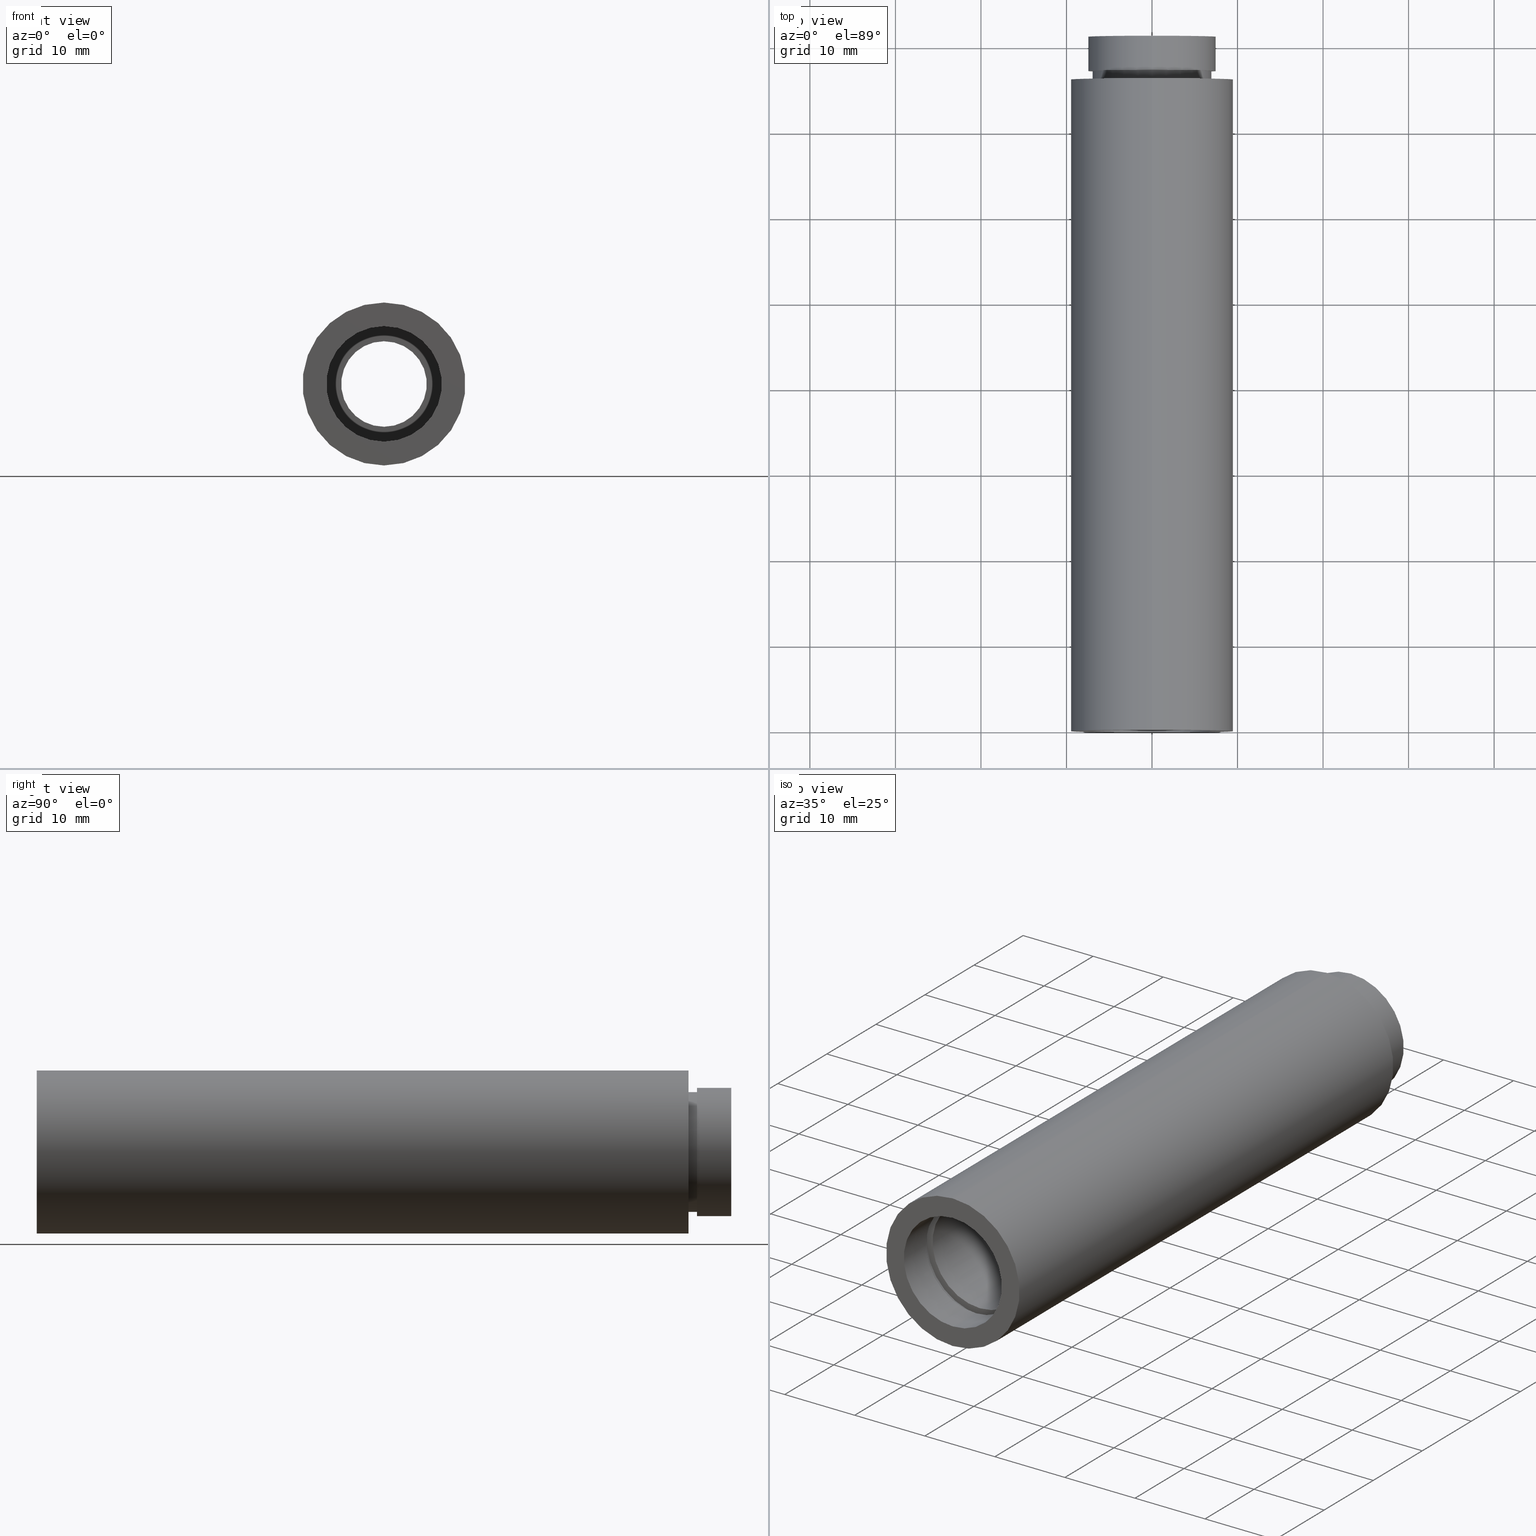
[diagram: canonical four-view strip — front | top / right | iso, engineering-drawing reading convention]
A machine part, canonical four-view strip (front | top / right | iso — engineering-drawing reading convention). The complete STEP part file that produces these views, byte-faithful:
ISO-10303-21;
HEADER;
FILE_DESCRIPTION (( 'STEP AP214' ),
    '1' );
FILE_NAME ('503077.STEP',
    '2019-09-10T06:35:35',
    ( '' ),
    ( '' ),
    'SwSTEP 2.0',
    'SolidWorks 2016',
    '' );
FILE_SCHEMA (( 'AUTOMOTIVE_DESIGN' ));
ENDSEC;

DATA;
#1 = FACE_BOUND ( 'NONE', #428, .T. ) ;
#2 = EDGE_CURVE ( 'NONE', #271, #26, #489, .T. ) ;
#3 = DIRECTION ( 'NONE',  ( -0.0000000000000000000, 1.000000000000000000, -0.0000000000000000000 ) ) ;
#4 = DIRECTION ( 'NONE',  ( -0.0000000000000000000, 1.000000000000000000, -0.0000000000000000000 ) ) ;
#5 = ORIENTED_EDGE ( 'NONE', *, *, #61, .F. ) ;
#6 = AXIS2_PLACEMENT_3D ( 'NONE', #574, #70, #329 ) ;
#7 =( LENGTH_UNIT ( ) NAMED_UNIT ( * ) SI_UNIT ( .MILLI., .METRE. ) );
#8 = DIRECTION ( 'NONE',  ( -0.0000000000000000000, 1.000000000000000000, -0.0000000000000000000 ) ) ;
#9 = EDGE_LOOP ( 'NONE', ( #167, #25, #665, #637 ) ) ;
#10 = ORIENTED_EDGE ( 'NONE', *, *, #2, .F. ) ;
#11 = AXIS2_PLACEMENT_3D ( 'NONE', #604, #501, #188 ) ;
#12 = ORIENTED_EDGE ( 'NONE', *, *, #636, .T. ) ;
#13 =( NAMED_UNIT ( * ) PLANE_ANGLE_UNIT ( ) SI_UNIT ( $, .RADIAN. ) );
#14 = ORIENTED_EDGE ( 'NONE', *, *, #750, .T. ) ;
#15 = EDGE_CURVE ( 'NONE', #702, #97, #758, .T. ) ;
#16 = ORIENTED_EDGE ( 'NONE', *, *, #120, .F. ) ;
#17 =( NAMED_UNIT ( * ) PLANE_ANGLE_UNIT ( ) SI_UNIT ( $, .RADIAN. ) );
#18 = AXIS2_PLACEMENT_3D ( 'NONE', #445, #320, #569 ) ;
#19 =( LENGTH_UNIT ( ) NAMED_UNIT ( * ) SI_UNIT ( .MILLI., .METRE. ) );
#20 = VERTEX_POINT ( 'NONE', #91 ) ;
#21 = CARTESIAN_POINT ( 'NONE',  ( 0.0000000000000000000, 76.20000000000000300, 7.000000000000009800 ) ) ;
#22 = AXIS2_PLACEMENT_3D ( 'NONE', #119, #244, #268 ) ;
#23 = DIRECTION ( 'NONE',  ( -0.0000000000000000000, 1.000000000000000000, -0.0000000000000000000 ) ) ;
#24 = CARTESIAN_POINT ( 'NONE',  ( 9.307315673519907200E-016, 161.3761669434274500, -7.600000000000019200 ) ) ;
#25 = ORIENTED_EDGE ( 'NONE', *, *, #515, .T. ) ;
#26 = VERTEX_POINT ( 'NONE', #21 ) ;
#27 = DIRECTION ( 'NONE',  ( -0.0000000000000000000, 1.000000000000000000, -0.0000000000000000000 ) ) ;
#28 = PLANE ( 'NONE',  #114 ) ;
#29 = EDGE_CURVE ( 'NONE', #760, #459, #589, .T. ) ;
#30 = VECTOR ( 'NONE', #48, 1000.000000000000000 ) ;
#31 = VECTOR ( 'NONE', #300, 1000.000000000000000 ) ;
#32 = DIRECTION ( 'NONE',  ( -0.0000000000000000000, 1.000000000000000000, -0.0000000000000000000 ) ) ;
#33 = ORIENTED_EDGE ( 'NONE', *, *, #168, .T. ) ;
#34 = FACE_OUTER_BOUND ( 'NONE', #564, .T. ) ;
#35 = EDGE_CURVE ( 'NONE', #297, #364, #579, .T. ) ;
#36 = CARTESIAN_POINT ( 'NONE',  ( 0.0000000000000000000, 77.20000000000000300, 7.500000000000009800 ) ) ;
#37 =( NAMED_UNIT ( * ) SI_UNIT ( $, .STERADIAN. ) SOLID_ANGLE_UNIT ( ) );
#38 = DIRECTION ( 'NONE',  ( -0.0000000000000000000, 1.000000000000000000, -0.0000000000000000000 ) ) ;
#39 = APPLICATION_CONTEXT ( 'automotive_design' ) ;
#40 = SURFACE_STYLE_USAGE ( .BOTH. , #43 ) ;
#41 = PRESENTATION_LAYER_ASSIGNMENT (  '', '', ( #278 ) ) ;
#42 =( NAMED_UNIT ( * ) SI_UNIT ( $, .STERADIAN. ) SOLID_ANGLE_UNIT ( ) );
#43 = SURFACE_SIDE_STYLE ('',( #374 ) ) ;
#44 = ORIENTED_EDGE ( 'NONE', *, *, #761, .F. ) ;
#45 = DIRECTION ( 'NONE',  ( -0.0000000000000000000, 1.000000000000000000, -0.0000000000000000000 ) ) ;
#46 = DIRECTION ( 'NONE',  ( -0.0000000000000000000, 1.000000000000000000, -0.0000000000000000000 ) ) ;
#47 = CARTESIAN_POINT ( 'NONE',  ( 8.572527594031496900E-016, -2.775557561562891400E-014, -7.000000000000020400 ) ) ;
#48 = DIRECTION ( 'NONE',  ( -0.0000000000000000000, 1.000000000000000000, -0.0000000000000000000 ) ) ;
#49 = FILL_AREA_STYLE ('',( #615 ) ) ;
#50 = LINE ( 'NONE', #688, #31 ) ;
#51 = AXIS2_PLACEMENT_3D ( 'NONE', #540, #102, #105 ) ;
#52 = ORIENTED_EDGE ( 'NONE', *, *, #303, .T. ) ;
#53 = ORIENTED_EDGE ( 'NONE', *, *, #210, .F. ) ;
#54 = FILL_AREA_STYLE_COLOUR ( '', #798 ) ;
#55 = ADVANCED_FACE ( 'NONE', ( #614 ), #386, .T. ) ;
#56 =( GEOMETRIC_REPRESENTATION_CONTEXT ( 3 ) GLOBAL_UNCERTAINTY_ASSIGNED_CONTEXT ( ( #108 ) ) GLOBAL_UNIT_ASSIGNED_CONTEXT ( ( #481, #724, #98 ) ) REPRESENTATION_CONTEXT ( 'NONE', 'WORKASPACE' ) );
#57 = DIRECTION ( 'NONE',  ( -0.0000000000000000000, 1.000000000000000000, -0.0000000000000000000 ) ) ;
#58 = DIRECTION ( 'NONE',  ( 0.0000000000000000000, 0.0000000000000000000, 1.000000000000000000 ) ) ;
#59 = FILL_AREA_STYLE ('',( #252 ) ) ;
#60 = VECTOR ( 'NONE', #135, 1000.000000000000000 ) ;
#61 = EDGE_CURVE ( 'NONE', #586, #258, #555, .T. ) ;
#62 = AXIS2_PLACEMENT_3D ( 'NONE', #516, #139, #643 ) ;
#63 = FILL_AREA_STYLE_COLOUR ( '', #814 ) ;
#64 = VERTEX_POINT ( 'NONE', #711 ) ;
#65 = ORIENTED_EDGE ( 'NONE', *, *, #541, .T. ) ;
#66 = CIRCLE ( 'NONE', #580, 6.750000000000018700 ) ;
#67 = AXIS2_PLACEMENT_3D ( 'NONE', #95, #388, #274 ) ;
#68 = ORIENTED_EDGE ( 'NONE', *, *, #288, .T. ) ;
#69 = SURFACE_STYLE_FILL_AREA ( #706 ) ;
#70 = DIRECTION ( 'NONE',  ( -0.0000000000000000000, 1.000000000000000000, -0.0000000000000000000 ) ) ;
#71 = ORIENTED_EDGE ( 'NONE', *, *, #733, .T. ) ;
#72 = EDGE_CURVE ( 'NONE', #284, #258, #626, .T. ) ;
#73 = EDGE_LOOP ( 'NONE', ( #312, #521, #183, #394 ) ) ;
#74 = CARTESIAN_POINT ( 'NONE',  ( 0.0000000000000000000, 161.3761669434274500, 0.0000000000000000000 ) ) ;
#75 = VERTEX_POINT ( 'NONE', #654 ) ;
#76 = ORIENTED_EDGE ( 'NONE', *, *, #29, .T. ) ;
#77 = MECHANICAL_DESIGN_GEOMETRIC_PRESENTATION_REPRESENTATION (  '', ( #250 ), #529 ) ;
#78 = FILL_AREA_STYLE ('',( #63 ) ) ;
#79 = CYLINDRICAL_SURFACE ( 'NONE', #216, 6.850000000000009400 ) ;
#80 = EDGE_LOOP ( 'NONE', ( #687, #156, #440, #518 ) ) ;
#81 = AXIS2_PLACEMENT_3D ( 'NONE', #756, #57, #635 ) ;
#82 = VECTOR ( 'NONE', #668, 1000.000000000000000 ) ;
#83 = ORIENTED_EDGE ( 'NONE', *, *, #127, .F. ) ;
#84 = FILL_AREA_STYLE_COLOUR ( '', #90 ) ;
#85 = ORIENTED_EDGE ( 'NONE', *, *, #761, .T. ) ;
#86 = EDGE_LOOP ( 'NONE', ( #376, #420 ) ) ;
#87 = FACE_OUTER_BOUND ( 'NONE', #590, .T. ) ;
#88 = EDGE_CURVE ( 'NONE', #437, #491, #727, .T. ) ;
#89 = DIRECTION ( 'NONE',  ( 0.0000000000000000000, 0.0000000000000000000, 1.000000000000000000 ) ) ;
#90 = COLOUR_RGB ( '',1.000000000000000000, 1.000000000000000000, 1.000000000000000000 ) ;
#91 = CARTESIAN_POINT ( 'NONE',  ( 0.0000000000000000000, 73.19999999999998900, 6.750000000000018700 ) ) ;
#92 = ORIENTED_EDGE ( 'NONE', *, *, #515, .F. ) ;
#93 = CARTESIAN_POINT ( 'NONE',  ( 0.0000000000000000000, 161.3761669434274500, 6.750000000000018700 ) ) ;
#94 = DIRECTION ( 'NONE',  ( 0.0000000000000000000, 0.0000000000000000000, 1.000000000000000000 ) ) ;
#95 = CARTESIAN_POINT ( 'NONE',  ( 0.0000000000000000000, 5.499999999999976900, 0.0000000000000000000 ) ) ;
#96 = ADVANCED_FACE ( 'NONE', ( #291, #137 ), #340, .F. ) ;
#97 = VERTEX_POINT ( 'NONE', #218 ) ;
#98 =( NAMED_UNIT ( * ) SI_UNIT ( $, .STERADIAN. ) SOLID_ANGLE_UNIT ( ) );
#99 = ORIENTED_EDGE ( 'NONE', *, *, #553, .F. ) ;
#100 = AXIS2_PLACEMENT_3D ( 'NONE', #344, #341, #225 ) ;
#101 = DIRECTION ( 'NONE',  ( 0.0000000000000000000, 0.0000000000000000000, 1.000000000000000000 ) ) ;
#102 = DIRECTION ( 'NONE',  ( -0.0000000000000000000, 1.000000000000000000, -0.0000000000000000000 ) ) ;
#103 = FACE_OUTER_BOUND ( 'NONE', #73, .T. ) ;
#104 = VECTOR ( 'NONE', #368, 1000.000000000000000 ) ;
#105 = DIRECTION ( 'NONE',  ( 0.0000000000000000000, 0.0000000000000000000, 1.000000000000000000 ) ) ;
#106 = EDGE_CURVE ( 'NONE', #441, #284, #153, .T. ) ;
#107 = CARTESIAN_POINT ( 'NONE',  ( 0.0000000000000000000, -2.775557561562891400E-014, 0.0000000000000000000 ) ) ;
#108 = UNCERTAINTY_MEASURE_WITH_UNIT (LENGTH_MEASURE( 1.000000000000000100E-005 ), #481, 'distance_accuracy_value', 'NONE');
#109 = AXIS2_PLACEMENT_3D ( 'NONE', #336, #23, #89 ) ;
#110 = VERTEX_POINT ( 'NONE', #778 ) ;
#111 = CARTESIAN_POINT ( 'NONE',  ( 0.0000000000000000000, 161.3761669434274500, 0.0000000000000000000 ) ) ;
#112 = ORIENTED_EDGE ( 'NONE', *, *, #577, .F. ) ;
#113 =( NAMED_UNIT ( * ) SI_UNIT ( $, .STERADIAN. ) SOLID_ANGLE_UNIT ( ) );
#114 = AXIS2_PLACEMENT_3D ( 'NONE', #467, #722, #282 ) ;
#115 = CIRCLE ( 'NONE', #618, 7.600000000000019200 ) ;
#116 = FACE_BOUND ( 'NONE', #653, .T. ) ;
#117 = ORIENTED_EDGE ( 'NONE', *, *, #389, .F. ) ;
#118 = CARTESIAN_POINT ( 'NONE',  ( 0.0000000000000000000, -2.775557561562891400E-014, 0.0000000000000000000 ) ) ;
#119 = CARTESIAN_POINT ( 'NONE',  ( 0.0000000000000000000, 161.3761669434274500, 0.0000000000000000000 ) ) ;
#120 = EDGE_CURVE ( 'NONE', #75, #64, #265, .T. ) ;
#121 = DIRECTION ( 'NONE',  ( -0.0000000000000000000, 1.000000000000000000, -0.0000000000000000000 ) ) ;
#122 = ADVANCED_FACE ( 'NONE', ( #230 ), #475, .F. ) ;
#123 = ORIENTED_EDGE ( 'NONE', *, *, #439, .F. ) ;
#124 = CYLINDRICAL_SURFACE ( 'NONE', #409, 7.500000000000009800 ) ;
#125 =( NAMED_UNIT ( * ) SI_UNIT ( $, .STERADIAN. ) SOLID_ANGLE_UNIT ( ) );
#126 = APPLICATION_CONTEXT ( 'automotive_design' ) ;
#127 = EDGE_CURVE ( 'NONE', #194, #192, #449, .T. ) ;
#128 =( LENGTH_UNIT ( ) NAMED_UNIT ( * ) SI_UNIT ( .MILLI., .METRE. ) );
#129 = MECHANICAL_DESIGN_GEOMETRIC_PRESENTATION_REPRESENTATION (  '', ( #292 ), #568 ) ;
#130 = DIRECTION ( 'NONE',  ( -0.0000000000000000000, 1.000000000000000000, -0.0000000000000000000 ) ) ;
#131 = AXIS2_PLACEMENT_3D ( 'NONE', #118, #554, #180 ) ;
#132 = DIRECTION ( 'NONE',  ( -0.0000000000000000000, 1.000000000000000000, -0.0000000000000000000 ) ) ;
#133 = FACE_OUTER_BOUND ( 'NONE', #86, .T. ) ;
#134 = ORIENTED_EDGE ( 'NONE', *, *, #717, .F. ) ;
#135 = DIRECTION ( 'NONE',  ( -0.0000000000000000000, 1.000000000000000000, -0.0000000000000000000 ) ) ;
#136 = EDGE_CURVE ( 'NONE', #284, #441, #533, .T. ) ;
#137 = FACE_BOUND ( 'NONE', #573, .T. ) ;
#138 = CARTESIAN_POINT ( 'NONE',  ( 0.0000000000000000000, 161.3761669434274500, 0.0000000000000000000 ) ) ;
#139 = DIRECTION ( 'NONE',  ( -0.0000000000000000000, 1.000000000000000000, -0.0000000000000000000 ) ) ;
#140 = ORIENTED_EDGE ( 'NONE', *, *, #72, .F. ) ;
#141 = SURFACE_STYLE_FILL_AREA ( #49 ) ;
#142 = VECTOR ( 'NONE', #27, 1000.000000000000000 ) ;
#143 = AXIS2_PLACEMENT_3D ( 'NONE', #158, #656, #466 ) ;
#144 = ORIENTED_EDGE ( 'NONE', *, *, #695, .T. ) ;
#145 = DIRECTION ( 'NONE',  ( -0.0000000000000000000, 1.000000000000000000, -0.0000000000000000000 ) ) ;
#146 = EDGE_CURVE ( 'NONE', #491, #754, #686, .T. ) ;
#147 = ORIENTED_EDGE ( 'NONE', *, *, #789, .F. ) ;
#148 = STYLED_ITEM ( 'NONE', ( #150 ), #199 ) ;
#149 = CARTESIAN_POINT ( 'NONE',  ( 0.0000000000000000000, 81.19999999999998900, 0.0000000000000000000 ) ) ;
#150 = PRESENTATION_STYLE_ASSIGNMENT (( #729 ) ) ;
#151 = FACE_OUTER_BOUND ( 'NONE', #732, .T. ) ;
#152 = LINE ( 'NONE', #542, #567 ) ;
#153 = CIRCLE ( 'NONE', #143, 7.600000000000019200 ) ;
#154 = VERTEX_POINT ( 'NONE', #343 ) ;
#155 = DIRECTION ( 'NONE',  ( -0.0000000000000000000, 1.000000000000000000, -0.0000000000000000000 ) ) ;
#156 = ORIENTED_EDGE ( 'NONE', *, *, #195, .T. ) ;
#157 = DIRECTION ( 'NONE',  ( 0.0000000000000000000, -1.000000000000000000, 0.0000000000000000000 ) ) ;
#158 = CARTESIAN_POINT ( 'NONE',  ( 0.0000000000000000000, 4.499999999999976000, 0.0000000000000000000 ) ) ;
#159 = ADVANCED_FACE ( 'NONE', ( #408 ), #307, .F. ) ;
#160 = EDGE_LOOP ( 'NONE', ( #478, #703 ) ) ;
#161 = DIRECTION ( 'NONE',  ( 0.0000000000000000000, -1.000000000000000000, 0.0000000000000000000 ) ) ;
#162 = PRODUCT ( '503077', '503077', '', ( #806 ) ) ;
#163 = EDGE_CURVE ( 'NONE', #194, #421, #360, .T. ) ;
#164 = SURFACE_STYLE_FILL_AREA ( #295 ) ;
#165 = COLOUR_RGB ( '',1.000000000000000000, 1.000000000000000000, 1.000000000000000000 ) ;
#166 = PRESENTATION_STYLE_ASSIGNMENT (( #240 ) ) ;
#167 = ORIENTED_EDGE ( 'NONE', *, *, #15, .F. ) ;
#168 = EDGE_CURVE ( 'NONE', #234, #387, #663, .T. ) ;
#169 = CYLINDRICAL_SURFACE ( 'NONE', #22, 7.500000000000009800 ) ;
#170 =( GEOMETRIC_REPRESENTATION_CONTEXT ( 3 ) GLOBAL_UNCERTAINTY_ASSIGNED_CONTEXT ( ( #632 ) ) GLOBAL_UNIT_ASSIGNED_CONTEXT ( ( #655, #537, #37 ) ) REPRESENTATION_CONTEXT ( 'NONE', 'WORKASPACE' ) );
#171 = DIRECTION ( 'NONE',  ( 0.0000000000000000000, 0.0000000000000000000, 1.000000000000000000 ) ) ;
#172 = UNCERTAINTY_MEASURE_WITH_UNIT (LENGTH_MEASURE( 1.000000000000000100E-005 ), #348, 'distance_accuracy_value', 'NONE');
#173 = ORIENTED_EDGE ( 'NONE', *, *, #789, .T. ) ;
#174 = CARTESIAN_POINT ( 'NONE',  ( 0.0000000000000000000, 74.19999999999998900, 6.850000000000009400 ) ) ;
#175 = CARTESIAN_POINT ( 'NONE',  ( 0.0000000000000000000, 4.499999999999976000, 0.0000000000000000000 ) ) ;
#176 = DIRECTION ( 'NONE',  ( 0.0000000000000000000, 0.0000000000000000000, 1.000000000000000000 ) ) ;
#177 = CYLINDRICAL_SURFACE ( 'NONE', #644, 5.000000000000011500 ) ;
#178 = DIRECTION ( 'NONE',  ( -0.0000000000000000000, 1.000000000000000000, -0.0000000000000000000 ) ) ;
#179 = CARTESIAN_POINT ( 'NONE',  ( 8.572527594031496900E-016, 161.3761669434274500, -7.000000000000020400 ) ) ;
#180 = DIRECTION ( 'NONE',  ( 0.0000000000000000000, 0.0000000000000000000, 1.000000000000000000 ) ) ;
#181 = ORIENTED_EDGE ( 'NONE', *, *, #337, .F. ) ;
#182 = ORIENTED_EDGE ( 'NONE', *, *, #146, .T. ) ;
#183 = ORIENTED_EDGE ( 'NONE', *, *, #337, .T. ) ;
#184 =( LENGTH_UNIT ( ) NAMED_UNIT ( * ) SI_UNIT ( .MILLI., .METRE. ) );
#185 = ORIENTED_EDGE ( 'NONE', *, *, #61, .T. ) ;
#186 =( LENGTH_UNIT ( ) NAMED_UNIT ( * ) SI_UNIT ( .MILLI., .METRE. ) );
#187 = EDGE_LOOP ( 'NONE', ( #326, #496, #539, #584 ) ) ;
#188 = DIRECTION ( 'NONE',  ( 0.0000000000000000000, 0.0000000000000000000, 1.000000000000000000 ) ) ;
#189 = SURFACE_STYLE_FILL_AREA ( #333 ) ;
#190 = AXIS2_PLACEMENT_3D ( 'NONE', #612, #494, #486 ) ;
#191 = CARTESIAN_POINT ( 'NONE',  ( 0.0000000000000000000, 73.19999999999998900, 0.0000000000000000000 ) ) ;
#192 = VERTEX_POINT ( 'NONE', #504 ) ;
#193 = SURFACE_STYLE_USAGE ( .BOTH. , #262 ) ;
#194 = VERTEX_POINT ( 'NONE', #800 ) ;
#195 = EDGE_CURVE ( 'NONE', #234, #459, #50, .T. ) ;
#196 = DIRECTION ( 'NONE',  ( 0.0000000000000000000, 0.0000000000000000000, 1.000000000000000000 ) ) ;
#197 = FACE_OUTER_BOUND ( 'NONE', #187, .T. ) ;
#198 = PRESENTATION_LAYER_ASSIGNMENT (  '', '', ( #148 ) ) ;
#199 = ADVANCED_BREP_SHAPE_REPRESENTATION ( '503077', ( #520, #391 ), #170 ) ;
#200 = ORIENTED_EDGE ( 'NONE', *, *, #369, .F. ) ;
#201 = CARTESIAN_POINT ( 'NONE',  ( 0.0000000000000000000, 4.499999999999976000, 0.0000000000000000000 ) ) ;
#202 = AXIS2_PLACEMENT_3D ( 'NONE', #107, #482, #596 ) ;
#203 = EDGE_LOOP ( 'NONE', ( #117, #705, #68, #361 ) ) ;
#204 = CARTESIAN_POINT ( 'NONE',  ( 0.0000000000000000000, 81.19999999999998900, 5.000000000000011500 ) ) ;
#205 = PRESENTATION_LAYER_ASSIGNMENT (  '', '', ( #308 ) ) ;
#206 = CYLINDRICAL_SURFACE ( 'NONE', #444, 6.750000000000018700 ) ;
#207 = VECTOR ( 'NONE', #296, 1000.000000000000000 ) ;
#208 = DIRECTION ( 'NONE',  ( -0.0000000000000000000, 1.000000000000000000, -0.0000000000000000000 ) ) ;
#209 = ORIENTED_EDGE ( 'NONE', *, *, #801, .T. ) ;
#210 = EDGE_CURVE ( 'NONE', #192, #802, #500, .T. ) ;
#211 = VERTEX_POINT ( 'NONE', #47 ) ;
#212 = AXIS2_PLACEMENT_3D ( 'NONE', #191, #566, #196 ) ;
#213 = DIRECTION ( 'NONE',  ( -0.0000000000000000000, 1.000000000000000000, -0.0000000000000000000 ) ) ;
#214 = LINE ( 'NONE', #423, #30 ) ;
#215 = PRESENTATION_STYLE_ASSIGNMENT (( #40 ) ) ;
#216 = AXIS2_PLACEMENT_3D ( 'NONE', #111, #623, #176 ) ;
#217 = CARTESIAN_POINT ( 'NONE',  ( 0.0000000000000000000, 81.19999999999998900, 0.0000000000000000000 ) ) ;
#218 = CARTESIAN_POINT ( 'NONE',  ( 1.166476076187855200E-015, 76.20000000000000300, -9.525000000000009200 ) ) ;
#219 = ADVANCED_FACE ( 'NONE', ( #222, #748 ), #680, .F. ) ;
#220 = CARTESIAN_POINT ( 'NONE',  ( 0.0000000000000000000, 77.20000000000000300, 0.0000000000000000000 ) ) ;
#221 = DIRECTION ( 'NONE',  ( -0.0000000000000000000, 1.000000000000000000, -0.0000000000000000000 ) ) ;
#222 = FACE_OUTER_BOUND ( 'NONE', #575, .T. ) ;
#223 = CARTESIAN_POINT ( 'NONE',  ( 9.525000000000019900, -1.518912785978163900E-014, 0.0000000000000000000 ) ) ;
#224 = DIRECTION ( 'NONE',  ( 0.0000000000000000000, 0.0000000000000000000, 1.000000000000000000 ) ) ;
#225 = DIRECTION ( 'NONE',  ( 0.0000000000000000000, 0.0000000000000000000, 1.000000000000000000 ) ) ;
#226 = AXIS2_PLACEMENT_3D ( 'NONE', #362, #243, #357 ) ;
#227 = UNCERTAINTY_MEASURE_WITH_UNIT (LENGTH_MEASURE( 1.000000000000000100E-005 ), #7, 'distance_accuracy_value', 'NONE');
#228 = CARTESIAN_POINT ( 'NONE',  ( 9.307315673519907200E-016, 4.499999999999976000, -7.600000000000019200 ) ) ;
#229 = CIRCLE ( 'NONE', #100, 6.750000000000018700 ) ;
#230 = FACE_OUTER_BOUND ( 'NONE', #203, .T. ) ;
#231 = ORIENTED_EDGE ( 'NONE', *, *, #88, .T. ) ;
#232 = MECHANICAL_DESIGN_GEOMETRIC_PRESENTATION_REPRESENTATION (  '', ( #148 ), #272 ) ;
#233 = ADVANCED_FACE ( 'NONE', ( #517 ), #169, .T. ) ;
#234 = VERTEX_POINT ( 'NONE', #456 ) ;
#235 = CARTESIAN_POINT ( 'NONE',  ( 0.0000000000000000000, 5.499999999999976900, 7.600000000000019200 ) ) ;
#236 =( GEOMETRIC_REPRESENTATION_CONTEXT ( 3 ) GLOBAL_UNCERTAINTY_ASSIGNED_CONTEXT ( ( #253 ) ) GLOBAL_UNIT_ASSIGNED_CONTEXT ( ( #19, #713, #335 ) ) REPRESENTATION_CONTEXT ( 'NONE', 'WORKASPACE' ) );
#237 = CARTESIAN_POINT ( 'NONE',  ( 7.000000000000020400, 4.499999999999983100, 0.0000000000000000000 ) ) ;
#238 = FACE_OUTER_BOUND ( 'NONE', #718, .T. ) ;
#239 = ADVANCED_FACE ( 'NONE', ( #34, #519 ), #749, .F. ) ;
#240 = SURFACE_STYLE_USAGE ( .BOTH. , #619 ) ;
#241 = ORIENTED_EDGE ( 'NONE', *, *, #72, .T. ) ;
#242 = STYLED_ITEM ( 'NONE', ( #365 ), #245 ) ;
#243 = DIRECTION ( 'NONE',  ( -0.0000000000000000000, 1.000000000000000000, -0.0000000000000000000 ) ) ;
#244 = DIRECTION ( 'NONE',  ( -0.0000000000000000000, 1.000000000000000000, -0.0000000000000000000 ) ) ;
#245 = ADVANCED_FACE ( 'NONE', ( #454 ), #269, .F. ) ;
#246 = ORIENTED_EDGE ( 'NONE', *, *, #777, .T. ) ;
#247 = ORIENTED_EDGE ( 'NONE', *, *, #146, .F. ) ;
#248 = EDGE_CURVE ( 'NONE', #387, #234, #413, .T. ) ;
#249 = DIRECTION ( 'NONE',  ( 0.0000000000000000000, 0.0000000000000000000, 1.000000000000000000 ) ) ;
#250 = STYLED_ITEM ( 'NONE', ( #373 ), #679 ) ;
#251 = PRESENTATION_STYLE_ASSIGNMENT (( #426 ) ) ;
#252 = FILL_AREA_STYLE_COLOUR ( '', #165 ) ;
#253 = UNCERTAINTY_MEASURE_WITH_UNIT (LENGTH_MEASURE( 1.000000000000000100E-005 ), #19, 'distance_accuracy_value', 'NONE');
#254 = CYLINDRICAL_SURFACE ( 'NONE', #771, 9.525000000000014600 ) ;
#255 = AXIS2_PLACEMENT_3D ( 'NONE', #527, #549, #796 ) ;
#256 = CARTESIAN_POINT ( 'NONE',  ( 0.0000000000000000000, 161.3761669434274500, 0.0000000000000000000 ) ) ;
#257 = PRODUCT_DEFINITION_SHAPE ( 'NONE', 'NONE',  #487 ) ;
#258 = VERTEX_POINT ( 'NONE', #469 ) ;
#259 = SURFACE_STYLE_FILL_AREA ( #78 ) ;
#260 = DIRECTION ( 'NONE',  ( -0.0000000000000000000, 1.000000000000000000, -0.0000000000000000000 ) ) ;
#261 = EDGE_LOOP ( 'NONE', ( #173, #71 ) ) ;
#262 = SURFACE_SIDE_STYLE ('',( #701 ) ) ;
#263 = CYLINDRICAL_SURFACE ( 'NONE', #328, 7.000000000000020400 ) ;
#264 = CIRCLE ( 'NONE', #677, 9.525000000000019900 ) ;
#265 = LINE ( 'NONE', #404, #548 ) ;
#266 = EDGE_LOOP ( 'NONE', ( #606, #231, #182, #638 ) ) ;
#267 = AXIS2_PLACEMENT_3D ( 'NONE', #220, #402, #461 ) ;
#268 = DIRECTION ( 'NONE',  ( 0.0000000000000000000, 0.0000000000000000000, 1.000000000000000000 ) ) ;
#269 = CYLINDRICAL_SURFACE ( 'NONE', #634, 5.000000000000011500 ) ;
#270 =( NAMED_UNIT ( * ) SI_UNIT ( $, .STERADIAN. ) SOLID_ANGLE_UNIT ( ) );
#271 = VERTEX_POINT ( 'NONE', #598 ) ;
#272 =( GEOMETRIC_REPRESENTATION_CONTEXT ( 3 ) GLOBAL_UNCERTAINTY_ASSIGNED_CONTEXT ( ( #172 ) ) GLOBAL_UNIT_ASSIGNED_CONTEXT ( ( #348, #793, #42 ) ) REPRESENTATION_CONTEXT ( 'NONE', 'WORKASPACE' ) );
#273 = CARTESIAN_POINT ( 'NONE',  ( 8.388830574159381700E-016, 74.19999999999998900, -6.850000000000009400 ) ) ;
#274 = DIRECTION ( 'NONE',  ( 0.0000000000000000000, 0.0000000000000000000, 1.000000000000000000 ) ) ;
#275 = FACE_OUTER_BOUND ( 'NONE', #642, .T. ) ;
#276 = PLANE ( 'NONE',  #752 ) ;
#277 = FACE_OUTER_BOUND ( 'NONE', #556, .T. ) ;
#278 = STYLED_ITEM ( 'NONE', ( #588 ), #520 ) ;
#279 = CARTESIAN_POINT ( 'NONE',  ( 0.0000000000000000000, 161.3761669434274500, 7.000000000000020400 ) ) ;
#280 = CARTESIAN_POINT ( 'NONE',  ( 0.0000000000000000000, 161.3761669434274500, 7.000000000000009800 ) ) ;
#281 = DIRECTION ( 'NONE',  ( 0.0000000000000000000, 0.0000000000000000000, 1.000000000000000000 ) ) ;
#282 = DIRECTION ( 'NONE',  ( 0.0000000000000000000, -0.0000000000000000000, -1.000000000000000000 ) ) ;
#283 = AXIS2_PLACEMENT_3D ( 'NONE', #678, #429, #58 ) ;
#284 = VERTEX_POINT ( 'NONE', #228 ) ;
#285 = UNCERTAINTY_MEASURE_WITH_UNIT (LENGTH_MEASURE( 1.000000000000000100E-005 ), #186, 'distance_accuracy_value', 'NONE');
#286 = SURFACE_STYLE_FILL_AREA ( #59 ) ;
#287 = VECTOR ( 'NONE', #493, 1000.000000000000000 ) ;
#288 = EDGE_CURVE ( 'NONE', #154, #364, #480, .T. ) ;
#289 = CARTESIAN_POINT ( 'NONE',  ( 0.0000000000000000000, 4.499999999999976000, 7.000000000000020400 ) ) ;
#290 = SURFACE_STYLE_FILL_AREA ( #797 ) ;
#291 = FACE_OUTER_BOUND ( 'NONE', #735, .T. ) ;
#292 = STYLED_ITEM ( 'NONE', ( #359 ), #684 ) ;
#293 = EDGE_LOOP ( 'NONE', ( #99, #123, #508, #383 ) ) ;
#294 = DIRECTION ( 'NONE',  ( -0.0000000000000000000, 1.000000000000000000, -0.0000000000000000000 ) ) ;
#295 = FILL_AREA_STYLE ('',( #483 ) ) ;
#296 = DIRECTION ( 'NONE',  ( -0.0000000000000000000, 1.000000000000000000, -0.0000000000000000000 ) ) ;
#297 = VERTEX_POINT ( 'NONE', #666 ) ;
#298 = EDGE_LOOP ( 'NONE', ( #85, #14 ) ) ;
#299 = ADVANCED_FACE ( 'NONE', ( #435 ), #254, .T. ) ;
#300 = DIRECTION ( 'NONE',  ( -0.0000000000000000000, 1.000000000000000000, -0.0000000000000000000 ) ) ;
#301 = FACE_OUTER_BOUND ( 'NONE', #347, .T. ) ;
#302 = VECTOR ( 'NONE', #659, 1000.000000000000000 ) ;
#303 = EDGE_CURVE ( 'NONE', #110, #20, #770, .T. ) ;
#304 = CARTESIAN_POINT ( 'NONE',  ( 0.0000000000000000000, 0.0000000000000000000, 0.0000000000000000000 ) ) ;
#305 = SURFACE_STYLE_USAGE ( .BOTH. , #617 ) ;
#306 = DIRECTION ( 'NONE',  ( 0.0000000000000000000, 0.0000000000000000000, 1.000000000000000000 ) ) ;
#307 = CYLINDRICAL_SURFACE ( 'NONE', #460, 7.600000000000019200 ) ;
#308 = STYLED_ITEM ( 'NONE', ( #251 ), #531 ) ;
#309 = CARTESIAN_POINT ( 'NONE',  ( 0.0000000000000000000, 161.3761669434274500, 7.600000000000019200 ) ) ;
#310 = UNCERTAINTY_MEASURE_WITH_UNIT (LENGTH_MEASURE( 1.000000000000000100E-005 ), #385, 'distance_accuracy_value', 'NONE');
#311 =( NAMED_UNIT ( * ) SI_UNIT ( $, .STERADIAN. ) SOLID_ANGLE_UNIT ( ) );
#312 = ORIENTED_EDGE ( 'NONE', *, *, #750, .F. ) ;
#313 = COLOUR_RGB ( '',1.000000000000000000, 1.000000000000000000, 1.000000000000000000 ) ;
#314 = CIRCLE ( 'NONE', #51, 7.000000000000009800 ) ;
#315 =( GEOMETRIC_REPRESENTATION_CONTEXT ( 3 ) GLOBAL_UNCERTAINTY_ASSIGNED_CONTEXT ( ( #227 ) ) GLOBAL_UNIT_ASSIGNED_CONTEXT ( ( #7, #446, #639 ) ) REPRESENTATION_CONTEXT ( 'NONE', 'WORKASPACE' ) );
#316 = LINE ( 'NONE', #179, #640 ) ;
#317 = CYLINDRICAL_SURFACE ( 'NONE', #190, 7.600000000000019200 ) ;
#318 =( NAMED_UNIT ( * ) PLANE_ANGLE_UNIT ( ) SI_UNIT ( $, .RADIAN. ) );
#319 = MECHANICAL_DESIGN_GEOMETRIC_PRESENTATION_REPRESENTATION (  '', ( #512 ), #56 ) ;
#320 = DIRECTION ( 'NONE',  ( -0.0000000000000000000, 1.000000000000000000, -0.0000000000000000000 ) ) ;
#321 = ORIENTED_EDGE ( 'NONE', *, *, #389, .T. ) ;
#322 = SURFACE_STYLE_USAGE ( .BOTH. , #378 ) ;
#323 = AXIS2_PLACEMENT_3D ( 'NONE', #356, #425, #306 ) ;
#324 = COLOUR_RGB ( '',1.000000000000000000, 1.000000000000000000, 1.000000000000000000 ) ;
#325 = CARTESIAN_POINT ( 'NONE',  ( 0.0000000000000000000, 5.499999999999976900, 0.0000000000000000000 ) ) ;
#326 = ORIENTED_EDGE ( 'NONE', *, *, #591, .F. ) ;
#327 = EDGE_CURVE ( 'NONE', #26, #271, #562, .T. ) ;
#328 = AXIS2_PLACEMENT_3D ( 'NONE', #503, #130, #751 ) ;
#329 = DIRECTION ( 'NONE',  ( 0.0000000000000000000, 0.0000000000000000000, 1.000000000000000000 ) ) ;
#330 = ORIENTED_EDGE ( 'NONE', *, *, #807, .F. ) ;
#331 = CARTESIAN_POINT ( 'NONE',  ( 0.0000000000000000000, 81.19999999999998900, 0.0000000000000000000 ) ) ;
#332 = AXIS2_PLACEMENT_3D ( 'NONE', #175, #419, #672 ) ;
#333 = FILL_AREA_STYLE ('',( #769 ) ) ;
#334 = DIRECTION ( 'NONE',  ( -0.0000000000000000000, 1.000000000000000000, -0.0000000000000000000 ) ) ;
#335 =( NAMED_UNIT ( * ) SI_UNIT ( $, .STERADIAN. ) SOLID_ANGLE_UNIT ( ) );
#336 = CARTESIAN_POINT ( 'NONE',  ( 0.0000000000000000000, 76.20000000000000300, 0.0000000000000000000 ) ) ;
#337 = EDGE_CURVE ( 'NONE', #64, #20, #229, .T. ) ;
#338 = DIRECTION ( 'NONE',  ( -0.0000000000000000000, 1.000000000000000000, -0.0000000000000000000 ) ) ;
#339 = SHAPE_DEFINITION_REPRESENTATION ( #257, #199 ) ;
#340 = PLANE ( 'NONE',  #551 ) ;
#341 = DIRECTION ( 'NONE',  ( -0.0000000000000000000, 1.000000000000000000, -0.0000000000000000000 ) ) ;
#342 = AXIS2_PLACEMENT_3D ( 'NONE', #783, #582, #658 ) ;
#343 = CARTESIAN_POINT ( 'NONE',  ( 8.572527594031496900E-016, 4.499999999999976000, -7.000000000000020400 ) ) ;
#344 = CARTESIAN_POINT ( 'NONE',  ( 0.0000000000000000000, 73.19999999999998900, 0.0000000000000000000 ) ) ;
#345 = DIRECTION ( 'NONE',  ( 0.0000000000000000000, 0.0000000000000000000, 1.000000000000000000 ) ) ;
#346 =( GEOMETRIC_REPRESENTATION_CONTEXT ( 3 ) GLOBAL_UNCERTAINTY_ASSIGNED_CONTEXT ( ( #285 ) ) GLOBAL_UNIT_ASSIGNED_CONTEXT ( ( #186, #557, #113 ) ) REPRESENTATION_CONTEXT ( 'NONE', 'WORKASPACE' ) );
#347 = EDGE_LOOP ( 'NONE', ( #140, #812, #430, #185 ) ) ;
#348 =( LENGTH_UNIT ( ) NAMED_UNIT ( * ) SI_UNIT ( .MILLI., .METRE. ) );
#349 = CIRCLE ( 'NONE', #81, 9.525000000000009200 ) ;
#350 = CARTESIAN_POINT ( 'NONE',  ( 0.0000000000000000000, -2.775557561562891400E-014, 0.0000000000000000000 ) ) ;
#351 = CIRCLE ( 'NONE', #657, 7.500000000000009800 ) ;
#352 = FILL_AREA_STYLE_COLOUR ( '', #641 ) ;
#353 = CARTESIAN_POINT ( 'NONE',  ( 8.388830574159381700E-016, 161.3761669434274500, -6.850000000000009400 ) ) ;
#354 = PRESENTATION_LAYER_ASSIGNMENT (  '', '', ( #712 ) ) ;
#355 = ORIENTED_EDGE ( 'NONE', *, *, #485, .T. ) ;
#356 = CARTESIAN_POINT ( 'NONE',  ( 6.750000000000018700, 5.499999999999984000, 0.0000000000000000000 ) ) ;
#357 = DIRECTION ( 'NONE',  ( 0.0000000000000000000, 0.0000000000000000000, 1.000000000000000000 ) ) ;
#358 =( LENGTH_UNIT ( ) NAMED_UNIT ( * ) SI_UNIT ( .MILLI., .METRE. ) );
#359 = PRESENTATION_STYLE_ASSIGNMENT (( #193 ) ) ;
#360 = LINE ( 'NONE', #427, #104 ) ;
#361 = ORIENTED_EDGE ( 'NONE', *, *, #35, .F. ) ;
#362 = CARTESIAN_POINT ( 'NONE',  ( 0.0000000000000000000, 77.20000000000000300, 0.0000000000000000000 ) ) ;
#363 = ADVANCED_FACE ( 'NONE', ( #277 ), #451, .T. ) ;
#364 = VERTEX_POINT ( 'NONE', #289 ) ;
#365 = PRESENTATION_STYLE_ASSIGNMENT (( #390 ) ) ;
#366 = UNCERTAINTY_MEASURE_WITH_UNIT (LENGTH_MEASURE( 1.000000000000000100E-005 ), #184, 'distance_accuracy_value', 'NONE');
#367 = ORIENTED_EDGE ( 'NONE', *, *, #195, .F. ) ;
#368 = DIRECTION ( 'NONE',  ( -0.0000000000000000000, 1.000000000000000000, -0.0000000000000000000 ) ) ;
#369 = EDGE_CURVE ( 'NONE', #595, #616, #152, .T. ) ;
#370 = ORIENTED_EDGE ( 'NONE', *, *, #524, .T. ) ;
#371 = SURFACE_STYLE_USAGE ( .BOTH. , #513 ) ;
#372 = MECHANICAL_DESIGN_GEOMETRIC_PRESENTATION_REPRESENTATION (  '', ( #767 ), #315 ) ;
#373 = PRESENTATION_STYLE_ASSIGNMENT (( #371 ) ) ;
#374 = SURFACE_STYLE_FILL_AREA ( #473 ) ;
#375 = MECHANICAL_DESIGN_GEOMETRIC_PRESENTATION_REPRESENTATION (  '', ( #242 ), #236 ) ;
#376 = ORIENTED_EDGE ( 'NONE', *, *, #127, .T. ) ;
#377 = ORIENTED_EDGE ( 'NONE', *, *, #777, .F. ) ;
#378 = SURFACE_SIDE_STYLE ('',( #69 ) ) ;
#379 = CARTESIAN_POINT ( 'NONE',  ( 5.000000000000011500, 74.19999999999998900, 0.0000000000000000000 ) ) ;
#380 = SURFACE_STYLE_USAGE ( .BOTH. , #700 ) ;
#381 = DIRECTION ( 'NONE',  ( 0.0000000000000000000, 0.0000000000000000000, 1.000000000000000000 ) ) ;
#382 = DIRECTION ( 'NONE',  ( 0.0000000000000000000, 0.0000000000000000000, 1.000000000000000000 ) ) ;
#383 = ORIENTED_EDGE ( 'NONE', *, *, #667, .T. ) ;
#384 = AXIS2_PLACEMENT_3D ( 'NONE', #631, #260, #249 ) ;
#385 =( LENGTH_UNIT ( ) NAMED_UNIT ( * ) SI_UNIT ( .MILLI., .METRE. ) );
#386 = CYLINDRICAL_SURFACE ( 'NONE', #559, 7.000000000000009800 ) ;
#387 = VERTEX_POINT ( 'NONE', #484 ) ;
#388 = DIRECTION ( 'NONE',  ( -0.0000000000000000000, 1.000000000000000000, -0.0000000000000000000 ) ) ;
#389 = EDGE_CURVE ( 'NONE', #211, #297, #779, .T. ) ;
#390 = SURFACE_STYLE_USAGE ( .BOTH. , #774 ) ;
#391 = AXIS2_PLACEMENT_3D ( 'NONE', #304, #610, #660 ) ;
#392 = DIRECTION ( 'NONE',  ( 0.0000000000000000000, 0.0000000000000000000, 1.000000000000000000 ) ) ;
#393 = EDGE_LOOP ( 'NONE', ( #468, #33 ) ) ;
#394 = ORIENTED_EDGE ( 'NONE', *, *, #303, .F. ) ;
#395 = ORIENTED_EDGE ( 'NONE', *, *, #627, .F. ) ;
#396 = DIRECTION ( 'NONE',  ( 0.0000000000000000000, 0.0000000000000000000, 1.000000000000000000 ) ) ;
#397 =( GEOMETRIC_REPRESENTATION_CONTEXT ( 3 ) GLOBAL_UNCERTAINTY_ASSIGNED_CONTEXT ( ( #366 ) ) GLOBAL_UNIT_ASSIGNED_CONTEXT ( ( #184, #681, #125 ) ) REPRESENTATION_CONTEXT ( 'NONE', 'WORKASPACE' ) );
#398 = ADVANCED_FACE ( 'NONE', ( #651, #808 ), #399, .F. ) ;
#399 = PLANE ( 'NONE',  #498 ) ;
#400 = EDGE_LOOP ( 'NONE', ( #367, #780, #784, #76 ) ) ;
#401 = DIRECTION ( 'NONE',  ( 0.0000000000000000000, 0.0000000000000000000, 1.000000000000000000 ) ) ;
#402 = DIRECTION ( 'NONE',  ( -0.0000000000000000000, 1.000000000000000000, -0.0000000000000000000 ) ) ;
#403 =( GEOMETRIC_REPRESENTATION_CONTEXT ( 3 ) GLOBAL_UNCERTAINTY_ASSIGNED_CONTEXT ( ( #809 ) ) GLOBAL_UNIT_ASSIGNED_CONTEXT ( ( #358, #17, #570 ) ) REPRESENTATION_CONTEXT ( 'NONE', 'WORKASPACE' ) );
#404 = CARTESIAN_POINT ( 'NONE',  ( 8.266365894244657000E-016, 161.3761669434274500, -6.750000000000018700 ) ) ;
#405 = CARTESIAN_POINT ( 'NONE',  ( 0.0000000000000000000, 4.499999999999976000, 7.600000000000019200 ) ) ;
#406 = ORIENTED_EDGE ( 'NONE', *, *, #650, .F. ) ;
#407 = CARTESIAN_POINT ( 'NONE',  ( 0.0000000000000000000, -2.775557561562891400E-014, 0.0000000000000000000 ) ) ;
#408 = FACE_OUTER_BOUND ( 'NONE', #753, .T. ) ;
#409 = AXIS2_PLACEMENT_3D ( 'NONE', #74, #208, #382 ) ;
#410 = CIRCLE ( 'NONE', #226, 7.000000000000009800 ) ;
#411 = VERTEX_POINT ( 'NONE', #726 ) ;
#412 = DIRECTION ( 'NONE',  ( 0.0000000000000000000, 0.0000000000000000000, 1.000000000000000000 ) ) ;
#413 = CIRCLE ( 'NONE', #448, 5.000000000000011500 ) ;
#414 = SURFACE_SIDE_STYLE ('',( #164 ) ) ;
#415 = SURFACE_SIDE_STYLE ('',( #578 ) ) ;
#416 = MECHANICAL_DESIGN_GEOMETRIC_PRESENTATION_REPRESENTATION (  '', ( #308 ), #346 ) ;
#417 = ORIENTED_EDGE ( 'NONE', *, *, #608, .F. ) ;
#418 = CIRCLE ( 'NONE', #109, 9.525000000000009200 ) ;
#419 = DIRECTION ( 'NONE',  ( -0.0000000000000000000, 1.000000000000000000, -0.0000000000000000000 ) ) ;
#420 = ORIENTED_EDGE ( 'NONE', *, *, #591, .T. ) ;
#421 = VERTEX_POINT ( 'NONE', #174 ) ;
#422 = CIRCLE ( 'NONE', #18, 6.850000000000009400 ) ;
#423 = CARTESIAN_POINT ( 'NONE',  ( 8.572527594031484000E-016, 161.3761669434274500, -7.000000000000009800 ) ) ;
#424 = VECTOR ( 'NONE', #145, 1000.000000000000000 ) ;
#425 = DIRECTION ( 'NONE',  ( -0.0000000000000000000, 1.000000000000000000, 0.0000000000000000000 ) ) ;
#426 = SURFACE_STYLE_USAGE ( .BOTH. , #415 ) ;
#427 = CARTESIAN_POINT ( 'NONE',  ( 0.0000000000000000000, 161.3761669434274500, 6.850000000000009400 ) ) ;
#428 = EDGE_LOOP ( 'NONE', ( #691, #502 ) ) ;
#429 = DIRECTION ( 'NONE',  ( -0.0000000000000000000, 1.000000000000000000, -0.0000000000000000000 ) ) ;
#430 = ORIENTED_EDGE ( 'NONE', *, *, #608, .T. ) ;
#431 = CIRCLE ( 'NONE', #131, 9.525000000000019900 ) ;
#432 = AXIS2_PLACEMENT_3D ( 'NONE', #594, #45, #490 ) ;
#433 = DIRECTION ( 'NONE',  ( 0.0000000000000000000, 0.0000000000000000000, 1.000000000000000000 ) ) ;
#434 = ADVANCED_FACE ( 'NONE', ( #1, #613 ), #605, .F. ) ;
#435 = FACE_OUTER_BOUND ( 'NONE', #9, .T. ) ;
#436 = CARTESIAN_POINT ( 'NONE',  ( 1.166476076187856200E-015, -2.775557561562891400E-014, -9.525000000000018100 ) ) ;
#437 = VERTEX_POINT ( 'NONE', #476 ) ;
#438 = CIRCLE ( 'NONE', #629, 7.500000000000009800 ) ;
#439 = EDGE_CURVE ( 'NONE', #297, #211, #625, .T. ) ;
#440 = ORIENTED_EDGE ( 'NONE', *, *, #766, .T. ) ;
#441 = VERTEX_POINT ( 'NONE', #405 ) ;
#442 = FACE_BOUND ( 'NONE', #447, .T. ) ;
#443 = ORIENTED_EDGE ( 'NONE', *, *, #88, .F. ) ;
#444 = AXIS2_PLACEMENT_3D ( 'NONE', #256, #514, #433 ) ;
#445 = CARTESIAN_POINT ( 'NONE',  ( 0.0000000000000000000, 74.19999999999998900, 0.0000000000000000000 ) ) ;
#446 =( NAMED_UNIT ( * ) PLANE_ANGLE_UNIT ( ) SI_UNIT ( $, .RADIAN. ) );
#447 = EDGE_LOOP ( 'NONE', ( #565, #534 ) ) ;
#448 = AXIS2_PLACEMENT_3D ( 'NONE', #545, #731, #101 ) ;
#449 = CIRCLE ( 'NONE', #432, 6.850000000000009400 ) ;
#450 = CARTESIAN_POINT ( 'NONE',  ( 0.0000000000000000000, 81.19999999999998900, 7.500000000000009800 ) ) ;
#451 = CYLINDRICAL_SURFACE ( 'NONE', #536, 9.525000000000014600 ) ;
#452 = EDGE_CURVE ( 'NONE', #387, #760, #786, .T. ) ;
#453 = UNCERTAINTY_MEASURE_WITH_UNIT (LENGTH_MEASURE( 1.000000000000000100E-005 ), #628, 'distance_accuracy_value', 'NONE');
#454 = FACE_OUTER_BOUND ( 'NONE', #80, .T. ) ;
#455 = AXIS2_PLACEMENT_3D ( 'NONE', #648, #221, #94 ) ;
#456 = CARTESIAN_POINT ( 'NONE',  ( 6.123233995736780100E-016, 74.19999999999998900, -5.000000000000011500 ) ) ;
#457 = ORIENTED_EDGE ( 'NONE', *, *, #577, .T. ) ;
#458 = CARTESIAN_POINT ( 'NONE',  ( 0.0000000000000000000, 5.499999999999976900, 0.0000000000000000000 ) ) ;
#459 = VERTEX_POINT ( 'NONE', #547 ) ;
#460 = AXIS2_PLACEMENT_3D ( 'NONE', #538, #294, #224 ) ;
#461 = DIRECTION ( 'NONE',  ( 0.0000000000000000000, 0.0000000000000000000, 1.000000000000000000 ) ) ;
#462 = EDGE_LOOP ( 'NONE', ( #765, #321 ) ) ;
#463 = CARTESIAN_POINT ( 'NONE',  ( 0.0000000000000000000, 161.3761669434274500, 0.0000000000000000000 ) ) ;
#464 = ORIENTED_EDGE ( 'NONE', *, *, #2, .T. ) ;
#465 = ADVANCED_FACE ( 'NONE', ( #116, #238 ), #28, .F. ) ;
#466 = DIRECTION ( 'NONE',  ( 0.0000000000000000000, 0.0000000000000000000, 1.000000000000000000 ) ) ;
#467 = CARTESIAN_POINT ( 'NONE',  ( 7.000000000000009800, 76.20000000000000300, 0.0000000000000000000 ) ) ;
#468 = ORIENTED_EDGE ( 'NONE', *, *, #248, .T. ) ;
#469 = CARTESIAN_POINT ( 'NONE',  ( 9.307315673519907200E-016, 5.499999999999976900, -7.600000000000019200 ) ) ;
#470 = DIRECTION ( 'NONE',  ( 0.0000000000000000000, 0.0000000000000000000, 1.000000000000000000 ) ) ;
#471 = DIRECTION ( 'NONE',  ( 0.0000000000000000000, 0.0000000000000000000, 1.000000000000000000 ) ) ;
#472 = DIRECTION ( 'NONE',  ( 0.0000000000000000000, -0.0000000000000000000, -1.000000000000000000 ) ) ;
#473 = FILL_AREA_STYLE ('',( #84 ) ) ;
#474 = COLOUR_RGB ( '',1.000000000000000000, 1.000000000000000000, 1.000000000000000000 ) ;
#475 = CYLINDRICAL_SURFACE ( 'NONE', #255, 7.000000000000020400 ) ;
#476 = CARTESIAN_POINT ( 'NONE',  ( 9.184850993605161700E-016, 77.20000000000000300, -7.500000000000009800 ) ) ;
#477 = FACE_OUTER_BOUND ( 'NONE', #160, .T. ) ;
#478 = ORIENTED_EDGE ( 'NONE', *, *, #106, .T. ) ;
#479 = PRODUCT_DEFINITION_CONTEXT ( 'detailed design', #126, 'design' ) ;
#480 = CIRCLE ( 'NONE', #11, 7.000000000000020400 ) ;
#481 =( LENGTH_UNIT ( ) NAMED_UNIT ( * ) SI_UNIT ( .MILLI., .METRE. ) );
#482 = DIRECTION ( 'NONE',  ( -0.0000000000000000000, 1.000000000000000000, -0.0000000000000000000 ) ) ;
#483 = FILL_AREA_STYLE_COLOUR ( '', #576 ) ;
#484 = CARTESIAN_POINT ( 'NONE',  ( 0.0000000000000000000, 74.19999999999998900, 5.000000000000011500 ) ) ;
#485 = EDGE_CURVE ( 'NONE', #595, #702, #264, .T. ) ;
#486 = DIRECTION ( 'NONE',  ( 0.0000000000000000000, 0.0000000000000000000, 1.000000000000000000 ) ) ;
#487 = PRODUCT_DEFINITION ( 'δ֪', '', #690, #479 ) ;
#488 = FACE_OUTER_BOUND ( 'NONE', #400, .T. ) ;
#489 = CIRCLE ( 'NONE', #755, 7.000000000000009800 ) ;
#490 = DIRECTION ( 'NONE',  ( 0.0000000000000000000, 0.0000000000000000000, 1.000000000000000000 ) ) ;
#491 = VERTEX_POINT ( 'NONE', #36 ) ;
#492 = ADVANCED_FACE ( 'NONE', ( #442, #477 ), #737, .F. ) ;
#493 = DIRECTION ( 'NONE',  ( -0.0000000000000000000, 1.000000000000000000, -0.0000000000000000000 ) ) ;
#494 = DIRECTION ( 'NONE',  ( -0.0000000000000000000, 1.000000000000000000, -0.0000000000000000000 ) ) ;
#495 = AXIS2_PLACEMENT_3D ( 'NONE', #217, #338, #470 ) ;
#496 = ORIENTED_EDGE ( 'NONE', *, *, #210, .T. ) ;
#497 = DIRECTION ( 'NONE',  ( 0.0000000000000000000, 0.0000000000000000000, 1.000000000000000000 ) ) ;
#498 = AXIS2_PLACEMENT_3D ( 'NONE', #223, #664, #345 ) ;
#499 = CIRCLE ( 'NONE', #602, 6.850000000000009400 ) ;
#500 = LINE ( 'NONE', #353, #287 ) ;
#501 = DIRECTION ( 'NONE',  ( -0.0000000000000000000, 1.000000000000000000, -0.0000000000000000000 ) ) ;
#502 = ORIENTED_EDGE ( 'NONE', *, *, #766, .F. ) ;
#503 = CARTESIAN_POINT ( 'NONE',  ( 0.0000000000000000000, 161.3761669434274500, 0.0000000000000000000 ) ) ;
#504 = CARTESIAN_POINT ( 'NONE',  ( 8.388830574159381700E-016, 73.19999999999998900, -6.850000000000009400 ) ) ;
#505 = ADVANCED_FACE ( 'NONE', ( #301 ), #317, .F. ) ;
#506 = EDGE_LOOP ( 'NONE', ( #406, #181 ) ) ;
#507 = STYLED_ITEM ( 'NONE', ( #715 ), #738 ) ;
#508 = ORIENTED_EDGE ( 'NONE', *, *, #35, .T. ) ;
#509 = ORIENTED_EDGE ( 'NONE', *, *, #485, .F. ) ;
#510 = CARTESIAN_POINT ( 'NONE',  ( 0.0000000000000000000, 74.19999999999998900, 0.0000000000000000000 ) ) ;
#511 = VECTOR ( 'NONE', #795, 1000.000000000000000 ) ;
#512 = STYLED_ITEM ( 'NONE', ( #215 ), #122 ) ;
#513 = SURFACE_SIDE_STYLE ('',( #286 ) ) ;
#514 = DIRECTION ( 'NONE',  ( -0.0000000000000000000, 1.000000000000000000, -0.0000000000000000000 ) ) ;
#515 = EDGE_CURVE ( 'NONE', #702, #595, #431, .T. ) ;
#516 = CARTESIAN_POINT ( 'NONE',  ( 0.0000000000000000000, 161.3761669434274500, 0.0000000000000000000 ) ) ;
#517 = FACE_OUTER_BOUND ( 'NONE', #266, .T. ) ;
#518 = ORIENTED_EDGE ( 'NONE', *, *, #452, .F. ) ;
#519 = FACE_BOUND ( 'NONE', #393, .T. ) ;
#520 = MANIFOLD_SOLID_BREP ( '��ת1', #697 ) ;
#521 = ORIENTED_EDGE ( 'NONE', *, *, #120, .T. ) ;
#522 = AXIS2_PLACEMENT_3D ( 'NONE', #407, #38, #171 ) ;
#523 = CARTESIAN_POINT ( 'NONE',  ( 0.0000000000000000000, 77.20000000000000300, 0.0000000000000000000 ) ) ;
#524 = EDGE_CURVE ( 'NONE', #810, #745, #410, .T. ) ;
#525 = MECHANICAL_DESIGN_GEOMETRIC_PRESENTATION_REPRESENTATION (  '', ( #507 ), #652 ) ;
#526 = CARTESIAN_POINT ( 'NONE',  ( 6.750000000000018700, 73.19999999999998900, 0.0000000000000000000 ) ) ;
#527 = CARTESIAN_POINT ( 'NONE',  ( 0.0000000000000000000, 161.3761669434274500, 0.0000000000000000000 ) ) ;
#528 = EDGE_LOOP ( 'NONE', ( #723, #457, #775, #377 ) ) ;
#529 =( GEOMETRIC_REPRESENTATION_CONTEXT ( 3 ) GLOBAL_UNCERTAINTY_ASSIGNED_CONTEXT ( ( #747 ) ) GLOBAL_UNIT_ASSIGNED_CONTEXT ( ( #128, #318, #811 ) ) REPRESENTATION_CONTEXT ( 'NONE', 'WORKASPACE' ) );
#530 = DIRECTION ( 'NONE',  ( -0.0000000000000000000, 1.000000000000000000, -0.0000000000000000000 ) ) ;
#531 = ADVANCED_FACE ( 'NONE', ( #488 ), #177, .F. ) ;
#532 = FACE_OUTER_BOUND ( 'NONE', #293, .T. ) ;
#533 = CIRCLE ( 'NONE', #332, 7.600000000000019200 ) ;
#534 = ORIENTED_EDGE ( 'NONE', *, *, #288, .F. ) ;
#535 = ORIENTED_EDGE ( 'NONE', *, *, #695, .F. ) ;
#536 = AXIS2_PLACEMENT_3D ( 'NONE', #600, #530, #412 ) ;
#537 =( NAMED_UNIT ( * ) PLANE_ANGLE_UNIT ( ) SI_UNIT ( $, .RADIAN. ) );
#538 = CARTESIAN_POINT ( 'NONE',  ( 0.0000000000000000000, 161.3761669434274500, 0.0000000000000000000 ) ) ;
#539 = ORIENTED_EDGE ( 'NONE', *, *, #627, .T. ) ;
#540 = CARTESIAN_POINT ( 'NONE',  ( 0.0000000000000000000, 77.20000000000000300, 0.0000000000000000000 ) ) ;
#541 = EDGE_CURVE ( 'NONE', #437, #411, #675, .T. ) ;
#542 = CARTESIAN_POINT ( 'NONE',  ( 0.0000000000000000000, 161.3761669434274500, 9.525000000000014600 ) ) ;
#543 = ORIENTED_EDGE ( 'NONE', *, *, #650, .T. ) ;
#544 = PRESENTATION_LAYER_ASSIGNMENT (  '', '', ( #767 ) ) ;
#545 = CARTESIAN_POINT ( 'NONE',  ( 0.0000000000000000000, 74.19999999999998900, 0.0000000000000000000 ) ) ;
#546 = LINE ( 'NONE', #309, #60 ) ;
#547 = CARTESIAN_POINT ( 'NONE',  ( 6.123233995736780100E-016, 81.19999999999998900, -5.000000000000011500 ) ) ;
#548 = VECTOR ( 'NONE', #599, 1000.000000000000000 ) ;
#549 = DIRECTION ( 'NONE',  ( -0.0000000000000000000, 1.000000000000000000, -0.0000000000000000000 ) ) ;
#550 = DIRECTION ( 'NONE',  ( -0.0000000000000000000, 1.000000000000000000, -0.0000000000000000000 ) ) ;
#551 = AXIS2_PLACEMENT_3D ( 'NONE', #649, #776, #281 ) ;
#552 = ORIENTED_EDGE ( 'NONE', *, *, #707, .F. ) ;
#553 = EDGE_CURVE ( 'NONE', #211, #154, #316, .T. ) ;
#554 = DIRECTION ( 'NONE',  ( -0.0000000000000000000, 1.000000000000000000, -0.0000000000000000000 ) ) ;
#555 = CIRCLE ( 'NONE', #67, 7.600000000000019200 ) ;
#556 = EDGE_LOOP ( 'NONE', ( #355, #720, #669, #200 ) ) ;
#557 =( NAMED_UNIT ( * ) PLANE_ANGLE_UNIT ( ) SI_UNIT ( $, .RADIAN. ) );
#558 = ADVANCED_FACE ( 'NONE', ( #197 ), #79, .F. ) ;
#559 = AXIS2_PLACEMENT_3D ( 'NONE', #716, #213, #471 ) ;
#560 = FILL_AREA_STYLE ('',( #693 ) ) ;
#561 = DIRECTION ( 'NONE',  ( 0.0000000000000000000, 0.0000000000000000000, 1.000000000000000000 ) ) ;
#562 = CIRCLE ( 'NONE', #728, 7.000000000000009800 ) ;
#563 = CARTESIAN_POINT ( 'NONE',  ( 0.0000000000000000000, 76.20000000000000300, 9.525000000000009200 ) ) ;
#564 = EDGE_LOOP ( 'NONE', ( #552, #395 ) ) ;
#565 = ORIENTED_EDGE ( 'NONE', *, *, #667, .F. ) ;
#566 = DIRECTION ( 'NONE',  ( -0.0000000000000000000, 1.000000000000000000, -0.0000000000000000000 ) ) ;
#567 = VECTOR ( 'NONE', #32, 1000.000000000000000 ) ;
#568 =( GEOMETRIC_REPRESENTATION_CONTEXT ( 3 ) GLOBAL_UNCERTAINTY_ASSIGNED_CONTEXT ( ( #453 ) ) GLOBAL_UNIT_ASSIGNED_CONTEXT ( ( #628, #743, #311 ) ) REPRESENTATION_CONTEXT ( 'NONE', 'WORKASPACE' ) );
#569 = DIRECTION ( 'NONE',  ( 0.0000000000000000000, 0.0000000000000000000, 1.000000000000000000 ) ) ;
#570 =( NAMED_UNIT ( * ) SI_UNIT ( $, .STERADIAN. ) SOLID_ANGLE_UNIT ( ) );
#571 = FILL_AREA_STYLE_COLOUR ( '', #313 ) ;
#572 = AXIS2_PLACEMENT_3D ( 'NONE', #730, #161, #472 ) ;
#573 = EDGE_LOOP ( 'NONE', ( #370, #787 ) ) ;
#574 = CARTESIAN_POINT ( 'NONE',  ( 0.0000000000000000000, 81.19999999999998900, 0.0000000000000000000 ) ) ;
#575 = EDGE_LOOP ( 'NONE', ( #5, #535 ) ) ;
#576 = COLOUR_RGB ( '',1.000000000000000000, 1.000000000000000000, 1.000000000000000000 ) ;
#577 = EDGE_CURVE ( 'NONE', #271, #745, #214, .T. ) ;
#578 = SURFACE_STYLE_FILL_AREA ( #739 ) ;
#579 = LINE ( 'NONE', #279, #302 ) ;
#580 = AXIS2_PLACEMENT_3D ( 'NONE', #458, #592, #593 ) ;
#581 = DIRECTION ( 'NONE',  ( -0.0000000000000000000, 1.000000000000000000, -0.0000000000000000000 ) ) ;
#582 = DIRECTION ( 'NONE',  ( -0.0000000000000000000, 1.000000000000000000, -0.0000000000000000000 ) ) ;
#583 = AXIS2_PLACEMENT_3D ( 'NONE', #379, #762, #381 ) ;
#584 = ORIENTED_EDGE ( 'NONE', *, *, #163, .F. ) ;
#585 = DIRECTION ( 'NONE',  ( -0.0000000000000000000, 1.000000000000000000, -0.0000000000000000000 ) ) ;
#586 = VERTEX_POINT ( 'NONE', #235 ) ;
#587 = DIRECTION ( 'NONE',  ( 0.0000000000000000000, -0.0000000000000000000, -1.000000000000000000 ) ) ;
#588 = PRESENTATION_STYLE_ASSIGNMENT (( #305 ) ) ;
#589 = CIRCLE ( 'NONE', #704, 5.000000000000011500 ) ;
#590 = EDGE_LOOP ( 'NONE', ( #16, #44, #52, #543 ) ) ;
#591 = EDGE_CURVE ( 'NONE', #192, #194, #624, .T. ) ;
#592 = DIRECTION ( 'NONE',  ( -0.0000000000000000000, 1.000000000000000000, -0.0000000000000000000 ) ) ;
#593 = DIRECTION ( 'NONE',  ( 0.0000000000000000000, 0.0000000000000000000, 1.000000000000000000 ) ) ;
#594 = CARTESIAN_POINT ( 'NONE',  ( 0.0000000000000000000, 73.19999999999998900, 0.0000000000000000000 ) ) ;
#595 = VERTEX_POINT ( 'NONE', #609 ) ;
#596 = DIRECTION ( 'NONE',  ( 0.0000000000000000000, 0.0000000000000000000, 1.000000000000000000 ) ) ;
#597 = CYLINDRICAL_SURFACE ( 'NONE', #455, 7.000000000000009800 ) ;
#598 = CARTESIAN_POINT ( 'NONE',  ( 8.572527594031484000E-016, 76.20000000000000300, -7.000000000000009800 ) ) ;
#599 = DIRECTION ( 'NONE',  ( -0.0000000000000000000, 1.000000000000000000, -0.0000000000000000000 ) ) ;
#600 = CARTESIAN_POINT ( 'NONE',  ( 0.0000000000000000000, 161.3761669434274500, 0.0000000000000000000 ) ) ;
#601 = DIRECTION ( 'NONE',  ( 0.0000000000000000000, 0.0000000000000000000, 1.000000000000000000 ) ) ;
#602 = AXIS2_PLACEMENT_3D ( 'NONE', #510, #132, #561 ) ;
#603 = COLOUR_RGB ( '',1.000000000000000000, 1.000000000000000000, 1.000000000000000000 ) ;
#604 = CARTESIAN_POINT ( 'NONE',  ( 0.0000000000000000000, 4.499999999999976000, 0.0000000000000000000 ) ) ;
#605 = PLANE ( 'NONE',  #572 ) ;
#606 = ORIENTED_EDGE ( 'NONE', *, *, #541, .F. ) ;
#607 = VECTOR ( 'NONE', #334, 1000.000000000000000 ) ;
#608 = EDGE_CURVE ( 'NONE', #441, #586, #546, .T. ) ;
#609 = CARTESIAN_POINT ( 'NONE',  ( 0.0000000000000000000, -2.775557561562891400E-014, 9.525000000000019900 ) ) ;
#610 = DIRECTION ( 'NONE',  ( 0.0000000000000000000, 0.0000000000000000000, 1.000000000000000000 ) ) ;
#611 = CARTESIAN_POINT ( 'NONE',  ( 0.0000000000000000000, 77.20000000000000300, 7.000000000000009800 ) ) ;
#612 = CARTESIAN_POINT ( 'NONE',  ( 0.0000000000000000000, 161.3761669434274500, 0.0000000000000000000 ) ) ;
#613 = FACE_OUTER_BOUND ( 'NONE', #261, .T. ) ;
#614 = FACE_OUTER_BOUND ( 'NONE', #813, .T. ) ;
#615 = FILL_AREA_STYLE_COLOUR ( '', #324 ) ;
#616 = VERTEX_POINT ( 'NONE', #563 ) ;
#617 = SURFACE_SIDE_STYLE ('',( #290 ) ) ;
#618 = AXIS2_PLACEMENT_3D ( 'NONE', #325, #4, #759 ) ;
#619 = SURFACE_SIDE_STYLE ('',( #141 ) ) ;
#620 = ORIENTED_EDGE ( 'NONE', *, *, #707, .T. ) ;
#621 = FACE_OUTER_BOUND ( 'NONE', #528, .T. ) ;
#622 = AXIS2_PLACEMENT_3D ( 'NONE', #237, #683, #676 ) ;
#623 = DIRECTION ( 'NONE',  ( -0.0000000000000000000, 1.000000000000000000, -0.0000000000000000000 ) ) ;
#624 = CIRCLE ( 'NONE', #384, 6.850000000000009400 ) ;
#625 = CIRCLE ( 'NONE', #522, 7.000000000000020400 ) ;
#626 = LINE ( 'NONE', #24, #424 ) ;
#627 = EDGE_CURVE ( 'NONE', #802, #421, #499, .T. ) ;
#628 =( LENGTH_UNIT ( ) NAMED_UNIT ( * ) SI_UNIT ( .MILLI., .METRE. ) );
#629 = AXIS2_PLACEMENT_3D ( 'NONE', #331, #710, #396 ) ;
#630 = ORIENTED_EDGE ( 'NONE', *, *, #136, .F. ) ;
#631 = CARTESIAN_POINT ( 'NONE',  ( 0.0000000000000000000, 73.19999999999998900, 0.0000000000000000000 ) ) ;
#632 = UNCERTAINTY_MEASURE_WITH_UNIT (LENGTH_MEASURE( 1.000000000000000100E-005 ), #655, 'distance_accuracy_value', 'NONE');
#633 = ORIENTED_EDGE ( 'NONE', *, *, #717, .T. ) ;
#634 = AXIS2_PLACEMENT_3D ( 'NONE', #463, #155, #401 ) ;
#635 = DIRECTION ( 'NONE',  ( 0.0000000000000000000, 0.0000000000000000000, 1.000000000000000000 ) ) ;
#636 = EDGE_CURVE ( 'NONE', #616, #97, #349, .T. ) ;
#637 = ORIENTED_EDGE ( 'NONE', *, *, #801, .F. ) ;
#638 = ORIENTED_EDGE ( 'NONE', *, *, #733, .F. ) ;
#639 =( NAMED_UNIT ( * ) SI_UNIT ( $, .STERADIAN. ) SOLID_ANGLE_UNIT ( ) );
#640 = VECTOR ( 'NONE', #121, 1000.000000000000000 ) ;
#641 = COLOUR_RGB ( '',1.000000000000000000, 1.000000000000000000, 1.000000000000000000 ) ;
#642 = EDGE_LOOP ( 'NONE', ( #633, #65, #147, #247 ) ) ;
#643 = DIRECTION ( 'NONE',  ( 0.0000000000000000000, 0.0000000000000000000, 1.000000000000000000 ) ) ;
#644 = AXIS2_PLACEMENT_3D ( 'NONE', #741, #550, #804 ) ;
#645 = DIRECTION ( 'NONE',  ( 0.0000000000000000000, 0.0000000000000000000, 1.000000000000000000 ) ) ;
#646 = CARTESIAN_POINT ( 'NONE',  ( 0.0000000000000000000, 76.20000000000000300, 0.0000000000000000000 ) ) ;
#647 = CYLINDRICAL_SURFACE ( 'NONE', #62, 6.750000000000018700 ) ;
#648 = CARTESIAN_POINT ( 'NONE',  ( 0.0000000000000000000, 161.3761669434274500, 0.0000000000000000000 ) ) ;
#649 = CARTESIAN_POINT ( 'NONE',  ( 7.000000000000009800, 77.20000000000000300, 0.0000000000000000000 ) ) ;
#650 = EDGE_CURVE ( 'NONE', #20, #64, #674, .T. ) ;
#651 = FACE_OUTER_BOUND ( 'NONE', #763, .T. ) ;
#652 =( GEOMETRIC_REPRESENTATION_CONTEXT ( 3 ) GLOBAL_UNCERTAINTY_ASSIGNED_CONTEXT ( ( #310 ) ) GLOBAL_UNIT_ASSIGNED_CONTEXT ( ( #385, #13, #270 ) ) REPRESENTATION_CONTEXT ( 'NONE', 'WORKASPACE' ) );
#653 = EDGE_LOOP ( 'NONE', ( #791, #10 ) ) ;
#654 = CARTESIAN_POINT ( 'NONE',  ( 8.266365894244657000E-016, 5.499999999999976900, -6.750000000000018700 ) ) ;
#655 =( LENGTH_UNIT ( ) NAMED_UNIT ( * ) SI_UNIT ( .MILLI., .METRE. ) );
#656 = DIRECTION ( 'NONE',  ( -0.0000000000000000000, 1.000000000000000000, -0.0000000000000000000 ) ) ;
#657 = AXIS2_PLACEMENT_3D ( 'NONE', #523, #8, #645 ) ;
#658 = DIRECTION ( 'NONE',  ( 0.0000000000000000000, 0.0000000000000000000, 1.000000000000000000 ) ) ;
#659 = DIRECTION ( 'NONE',  ( -0.0000000000000000000, 1.000000000000000000, -0.0000000000000000000 ) ) ;
#660 = DIRECTION ( 'NONE',  ( 1.000000000000000000, 0.0000000000000000000, 0.0000000000000000000 ) ) ;
#661 = ADVANCED_FACE ( 'NONE', ( #151 ), #708, .F. ) ;
#662 = CARTESIAN_POINT ( 'NONE',  ( 0.0000000000000000000, 161.3761669434274500, 7.500000000000009800 ) ) ;
#663 = CIRCLE ( 'NONE', #283, 5.000000000000011500 ) ;
#664 = DIRECTION ( 'NONE',  ( -0.0000000000000000000, 1.000000000000000000, 0.0000000000000000000 ) ) ;
#665 = ORIENTED_EDGE ( 'NONE', *, *, #369, .T. ) ;
#666 = CARTESIAN_POINT ( 'NONE',  ( 0.0000000000000000000, -2.775557561562891400E-014, 7.000000000000020400 ) ) ;
#667 = EDGE_CURVE ( 'NONE', #364, #154, #685, .T. ) ;
#668 = DIRECTION ( 'NONE',  ( -0.0000000000000000000, 1.000000000000000000, -0.0000000000000000000 ) ) ;
#669 = ORIENTED_EDGE ( 'NONE', *, *, #636, .F. ) ;
#670 = PRESENTATION_LAYER_ASSIGNMENT (  '', '', ( #250 ) ) ;
#671 = APPLICATION_PROTOCOL_DEFINITION ( 'draft international standard', 'automotive_design', 1998, #39 ) ;
#672 = DIRECTION ( 'NONE',  ( 0.0000000000000000000, 0.0000000000000000000, 1.000000000000000000 ) ) ;
#673 = DIRECTION ( 'NONE',  ( -0.0000000000000000000, 1.000000000000000000, -0.0000000000000000000 ) ) ;
#674 = CIRCLE ( 'NONE', #212, 6.750000000000018700 ) ;
#675 = LINE ( 'NONE', #689, #511 ) ;
#676 = DIRECTION ( 'NONE',  ( 0.0000000000000000000, -0.0000000000000000000, -1.000000000000000000 ) ) ;
#677 = AXIS2_PLACEMENT_3D ( 'NONE', #350, #46, #497 ) ;
#678 = CARTESIAN_POINT ( 'NONE',  ( 0.0000000000000000000, 74.19999999999998900, 0.0000000000000000000 ) ) ;
#679 = ADVANCED_FACE ( 'NONE', ( #103 ), #206, .F. ) ;
#680 = PLANE ( 'NONE',  #323 ) ;
#681 =( NAMED_UNIT ( * ) PLANE_ANGLE_UNIT ( ) SI_UNIT ( $, .RADIAN. ) );
#682 = APPLICATION_PROTOCOL_DEFINITION ( 'draft international standard', 'automotive_design', 1998, #126 ) ;
#683 = DIRECTION ( 'NONE',  ( 0.0000000000000000000, -1.000000000000000000, 0.0000000000000000000 ) ) ;
#684 = ADVANCED_FACE ( 'NONE', ( #532 ), #263, .F. ) ;
#685 = CIRCLE ( 'NONE', #781, 7.000000000000020400 ) ;
#686 = LINE ( 'NONE', #662, #207 ) ;
#687 = ORIENTED_EDGE ( 'NONE', *, *, #168, .F. ) ;
#688 = CARTESIAN_POINT ( 'NONE',  ( 6.123233995736780100E-016, 161.3761669434274500, -5.000000000000011500 ) ) ;
#689 = CARTESIAN_POINT ( 'NONE',  ( 9.184850993605161700E-016, 161.3761669434274500, -7.500000000000009800 ) ) ;
#690 = PRODUCT_DEFINITION_FORMATION_WITH_SPECIFIED_SOURCE ( '�κ�', '', #162, .NOT_KNOWN. ) ;
#691 = ORIENTED_EDGE ( 'NONE', *, *, #29, .F. ) ;
#692 = PRESENTATION_LAYER_ASSIGNMENT (  '', '', ( #242 ) ) ;
#693 = FILL_AREA_STYLE_COLOUR ( '', #474 ) ;
#694 = CIRCLE ( 'NONE', #6, 7.500000000000009800 ) ;
#695 = EDGE_CURVE ( 'NONE', #258, #586, #115, .T. ) ;
#696 = DIRECTION ( 'NONE',  ( -0.0000000000000000000, 1.000000000000000000, -0.0000000000000000000 ) ) ;
#697 = CLOSED_SHELL ( 'NONE', ( #558, #679, #159, #122, #363, #782, #744, #245, #239, #531, #434, #233, #96, #55, #465, #299, #398, #684, #492, #505, #219, #738, #805, #661 ) ) ;
#698 = DIRECTION ( 'NONE',  ( 0.0000000000000000000, 0.0000000000000000000, 1.000000000000000000 ) ) ;
#699 = PRESENTATION_LAYER_ASSIGNMENT (  '', '', ( #507 ) ) ;
#700 = SURFACE_SIDE_STYLE ('',( #259 ) ) ;
#701 = SURFACE_STYLE_FILL_AREA ( #560 ) ;
#702 = VERTEX_POINT ( 'NONE', #436 ) ;
#703 = ORIENTED_EDGE ( 'NONE', *, *, #136, .T. ) ;
#704 = AXIS2_PLACEMENT_3D ( 'NONE', #149, #585, #719 ) ;
#705 = ORIENTED_EDGE ( 'NONE', *, *, #553, .T. ) ;
#706 = FILL_AREA_STYLE ('',( #571 ) ) ;
#707 = EDGE_CURVE ( 'NONE', #421, #802, #422, .T. ) ;
#708 = CYLINDRICAL_SURFACE ( 'NONE', #740, 6.850000000000009400 ) ;
#709 = PRESENTATION_LAYER_ASSIGNMENT (  '', '', ( #292 ) ) ;
#710 = DIRECTION ( 'NONE',  ( -0.0000000000000000000, 1.000000000000000000, -0.0000000000000000000 ) ) ;
#711 = CARTESIAN_POINT ( 'NONE',  ( 8.266365894244657000E-016, 73.19999999999998900, -6.750000000000018700 ) ) ;
#712 = STYLED_ITEM ( 'NONE', ( #166 ), #233 ) ;
#713 =( NAMED_UNIT ( * ) PLANE_ANGLE_UNIT ( ) SI_UNIT ( $, .RADIAN. ) );
#714 = CIRCLE ( 'NONE', #495, 5.000000000000011500 ) ;
#715 = PRESENTATION_STYLE_ASSIGNMENT (( #322 ) ) ;
#716 = CARTESIAN_POINT ( 'NONE',  ( 0.0000000000000000000, 161.3761669434274500, 0.0000000000000000000 ) ) ;
#717 = EDGE_CURVE ( 'NONE', #491, #437, #351, .T. ) ;
#718 = EDGE_LOOP ( 'NONE', ( #12, #209 ) ) ;
#719 = DIRECTION ( 'NONE',  ( 0.0000000000000000000, 0.0000000000000000000, 1.000000000000000000 ) ) ;
#720 = ORIENTED_EDGE ( 'NONE', *, *, #15, .T. ) ;
#721 = DIRECTION ( 'NONE',  ( -0.0000000000000000000, 1.000000000000000000, -0.0000000000000000000 ) ) ;
#722 = DIRECTION ( 'NONE',  ( 0.0000000000000000000, -1.000000000000000000, 0.0000000000000000000 ) ) ;
#723 = ORIENTED_EDGE ( 'NONE', *, *, #327, .T. ) ;
#724 =( NAMED_UNIT ( * ) PLANE_ANGLE_UNIT ( ) SI_UNIT ( $, .RADIAN. ) );
#725 = CARTESIAN_POINT ( 'NONE',  ( 0.0000000000000000000, 161.3761669434274500, 0.0000000000000000000 ) ) ;
#726 = CARTESIAN_POINT ( 'NONE',  ( 9.184850993605161700E-016, 81.19999999999998900, -7.500000000000009800 ) ) ;
#727 = CIRCLE ( 'NONE', #267, 7.500000000000009800 ) ;
#728 = AXIS2_PLACEMENT_3D ( 'NONE', #790, #721, #601 ) ;
#729 = SURFACE_STYLE_USAGE ( .BOTH. , #414 ) ;
#730 = CARTESIAN_POINT ( 'NONE',  ( 5.000000000000011500, 81.19999999999998900, 0.0000000000000000000 ) ) ;
#731 = DIRECTION ( 'NONE',  ( -0.0000000000000000000, 1.000000000000000000, -0.0000000000000000000 ) ) ;
#732 = EDGE_LOOP ( 'NONE', ( #53, #83, #794, #620 ) ) ;
#733 = EDGE_CURVE ( 'NONE', #411, #754, #694, .T. ) ;
#734 = CIRCLE ( 'NONE', #342, 6.750000000000018700 ) ;
#735 = EDGE_LOOP ( 'NONE', ( #134, #443 ) ) ;
#736 = DIRECTION ( 'NONE',  ( 0.0000000000000000000, 0.0000000000000000000, 1.000000000000000000 ) ) ;
#737 = PLANE ( 'NONE',  #622 ) ;
#738 = ADVANCED_FACE ( 'NONE', ( #87 ), #647, .F. ) ;
#739 = FILL_AREA_STYLE ('',( #352 ) ) ;
#740 = AXIS2_PLACEMENT_3D ( 'NONE', #138, #696, #698 ) ;
#741 = CARTESIAN_POINT ( 'NONE',  ( 0.0000000000000000000, 161.3761669434274500, 0.0000000000000000000 ) ) ;
#742 = MECHANICAL_DESIGN_GEOMETRIC_PRESENTATION_REPRESENTATION (  '', ( #278 ), #397 ) ;
#743 =( NAMED_UNIT ( * ) PLANE_ANGLE_UNIT ( ) SI_UNIT ( $, .RADIAN. ) );
#744 = ADVANCED_FACE ( 'NONE', ( #275 ), #124, .T. ) ;
#745 = VERTEX_POINT ( 'NONE', #768 ) ;
#746 = DIRECTION ( 'NONE',  ( 0.0000000000000000000, 0.0000000000000000000, 1.000000000000000000 ) ) ;
#747 = UNCERTAINTY_MEASURE_WITH_UNIT (LENGTH_MEASURE( 1.000000000000000100E-005 ), #128, 'distance_accuracy_value', 'NONE');
#748 = FACE_BOUND ( 'NONE', #298, .T. ) ;
#749 = PLANE ( 'NONE',  #583 ) ;
#750 = EDGE_CURVE ( 'NONE', #75, #110, #66, .T. ) ;
#751 = DIRECTION ( 'NONE',  ( 0.0000000000000000000, 0.0000000000000000000, 1.000000000000000000 ) ) ;
#752 = AXIS2_PLACEMENT_3D ( 'NONE', #526, #157, #587 ) ;
#753 = EDGE_LOOP ( 'NONE', ( #630, #241, #144, #417 ) ) ;
#754 = VERTEX_POINT ( 'NONE', #450 ) ;
#755 = AXIS2_PLACEMENT_3D ( 'NONE', #646, #581, #392 ) ;
#756 = CARTESIAN_POINT ( 'NONE',  ( 0.0000000000000000000, 76.20000000000000300, 0.0000000000000000000 ) ) ;
#757 = VECTOR ( 'NONE', #673, 1000.000000000000000 ) ;
#758 = LINE ( 'NONE', #772, #142 ) ;
#759 = DIRECTION ( 'NONE',  ( 0.0000000000000000000, 0.0000000000000000000, 1.000000000000000000 ) ) ;
#760 = VERTEX_POINT ( 'NONE', #204 ) ;
#761 = EDGE_CURVE ( 'NONE', #110, #75, #734, .T. ) ;
#762 = DIRECTION ( 'NONE',  ( -0.0000000000000000000, 1.000000000000000000, 0.0000000000000000000 ) ) ;
#763 = EDGE_LOOP ( 'NONE', ( #509, #92 ) ) ;
#764 = PRESENTATION_STYLE_ASSIGNMENT (( #380 ) ) ;
#765 = ORIENTED_EDGE ( 'NONE', *, *, #439, .T. ) ;
#766 = EDGE_CURVE ( 'NONE', #459, #760, #714, .T. ) ;
#767 = STYLED_ITEM ( 'NONE', ( #764 ), #744 ) ;
#768 = CARTESIAN_POINT ( 'NONE',  ( 8.572527594031484000E-016, 77.20000000000000300, -7.000000000000009800 ) ) ;
#769 = FILL_AREA_STYLE_COLOUR ( '', #603 ) ;
#770 = LINE ( 'NONE', #93, #82 ) ;
#771 = AXIS2_PLACEMENT_3D ( 'NONE', #725, #178, #736 ) ;
#772 = CARTESIAN_POINT ( 'NONE',  ( 1.166476076187855600E-015, 161.3761669434274500, -9.525000000000014600 ) ) ;
#773 = LINE ( 'NONE', #280, #607 ) ;
#774 = SURFACE_SIDE_STYLE ('',( #189 ) ) ;
#775 = ORIENTED_EDGE ( 'NONE', *, *, #524, .F. ) ;
#776 = DIRECTION ( 'NONE',  ( -0.0000000000000000000, 1.000000000000000000, 0.0000000000000000000 ) ) ;
#777 = EDGE_CURVE ( 'NONE', #26, #810, #773, .T. ) ;
#778 = CARTESIAN_POINT ( 'NONE',  ( 0.0000000000000000000, 5.499999999999976900, 6.750000000000018700 ) ) ;
#779 = CIRCLE ( 'NONE', #202, 7.000000000000020400 ) ;
#780 = ORIENTED_EDGE ( 'NONE', *, *, #248, .F. ) ;
#781 = AXIS2_PLACEMENT_3D ( 'NONE', #201, #3, #746 ) ;
#782 = ADVANCED_FACE ( 'NONE', ( #621 ), #597, .T. ) ;
#783 = CARTESIAN_POINT ( 'NONE',  ( 0.0000000000000000000, 5.499999999999976900, 0.0000000000000000000 ) ) ;
#784 = ORIENTED_EDGE ( 'NONE', *, *, #452, .T. ) ;
#785 = MECHANICAL_DESIGN_GEOMETRIC_PRESENTATION_REPRESENTATION (  '', ( #712 ), #403 ) ;
#786 = LINE ( 'NONE', #788, #757 ) ;
#787 = ORIENTED_EDGE ( 'NONE', *, *, #807, .T. ) ;
#788 = CARTESIAN_POINT ( 'NONE',  ( 0.0000000000000000000, 161.3761669434274500, 5.000000000000011500 ) ) ;
#789 = EDGE_CURVE ( 'NONE', #754, #411, #438, .T. ) ;
#790 = CARTESIAN_POINT ( 'NONE',  ( 0.0000000000000000000, 76.20000000000000300, 0.0000000000000000000 ) ) ;
#791 = ORIENTED_EDGE ( 'NONE', *, *, #327, .F. ) ;
#792 = PRODUCT_RELATED_PRODUCT_CATEGORY ( 'part', '', ( #162 ) ) ;
#793 =( NAMED_UNIT ( * ) PLANE_ANGLE_UNIT ( ) SI_UNIT ( $, .RADIAN. ) );
#794 = ORIENTED_EDGE ( 'NONE', *, *, #163, .T. ) ;
#795 = DIRECTION ( 'NONE',  ( -0.0000000000000000000, 1.000000000000000000, -0.0000000000000000000 ) ) ;
#796 = DIRECTION ( 'NONE',  ( 0.0000000000000000000, 0.0000000000000000000, 1.000000000000000000 ) ) ;
#797 = FILL_AREA_STYLE ('',( #54 ) ) ;
#798 = COLOUR_RGB ( '',1.000000000000000000, 1.000000000000000000, 1.000000000000000000 ) ;
#799 = PRESENTATION_LAYER_ASSIGNMENT (  '', '', ( #512 ) ) ;
#800 = CARTESIAN_POINT ( 'NONE',  ( 0.0000000000000000000, 73.19999999999998900, 6.850000000000009400 ) ) ;
#801 = EDGE_CURVE ( 'NONE', #97, #616, #418, .T. ) ;
#802 = VERTEX_POINT ( 'NONE', #273 ) ;
#803 = FACE_BOUND ( 'NONE', #506, .T. ) ;
#804 = DIRECTION ( 'NONE',  ( 0.0000000000000000000, 0.0000000000000000000, 1.000000000000000000 ) ) ;
#805 = ADVANCED_FACE ( 'NONE', ( #803, #133 ), #276, .F. ) ;
#806 = PRODUCT_CONTEXT ( 'NONE', #39, 'mechanical' ) ;
#807 = EDGE_CURVE ( 'NONE', #745, #810, #314, .T. ) ;
#808 = FACE_BOUND ( 'NONE', #462, .T. ) ;
#809 = UNCERTAINTY_MEASURE_WITH_UNIT (LENGTH_MEASURE( 1.000000000000000100E-005 ), #358, 'distance_accuracy_value', 'NONE');
#810 = VERTEX_POINT ( 'NONE', #611 ) ;
#811 =( NAMED_UNIT ( * ) SI_UNIT ( $, .STERADIAN. ) SOLID_ANGLE_UNIT ( ) );
#812 = ORIENTED_EDGE ( 'NONE', *, *, #106, .F. ) ;
#813 = EDGE_LOOP ( 'NONE', ( #112, #464, #246, #330 ) ) ;
#814 = COLOUR_RGB ( '',1.000000000000000000, 1.000000000000000000, 1.000000000000000000 ) ;
ENDSEC;
END-ISO-10303-21;
